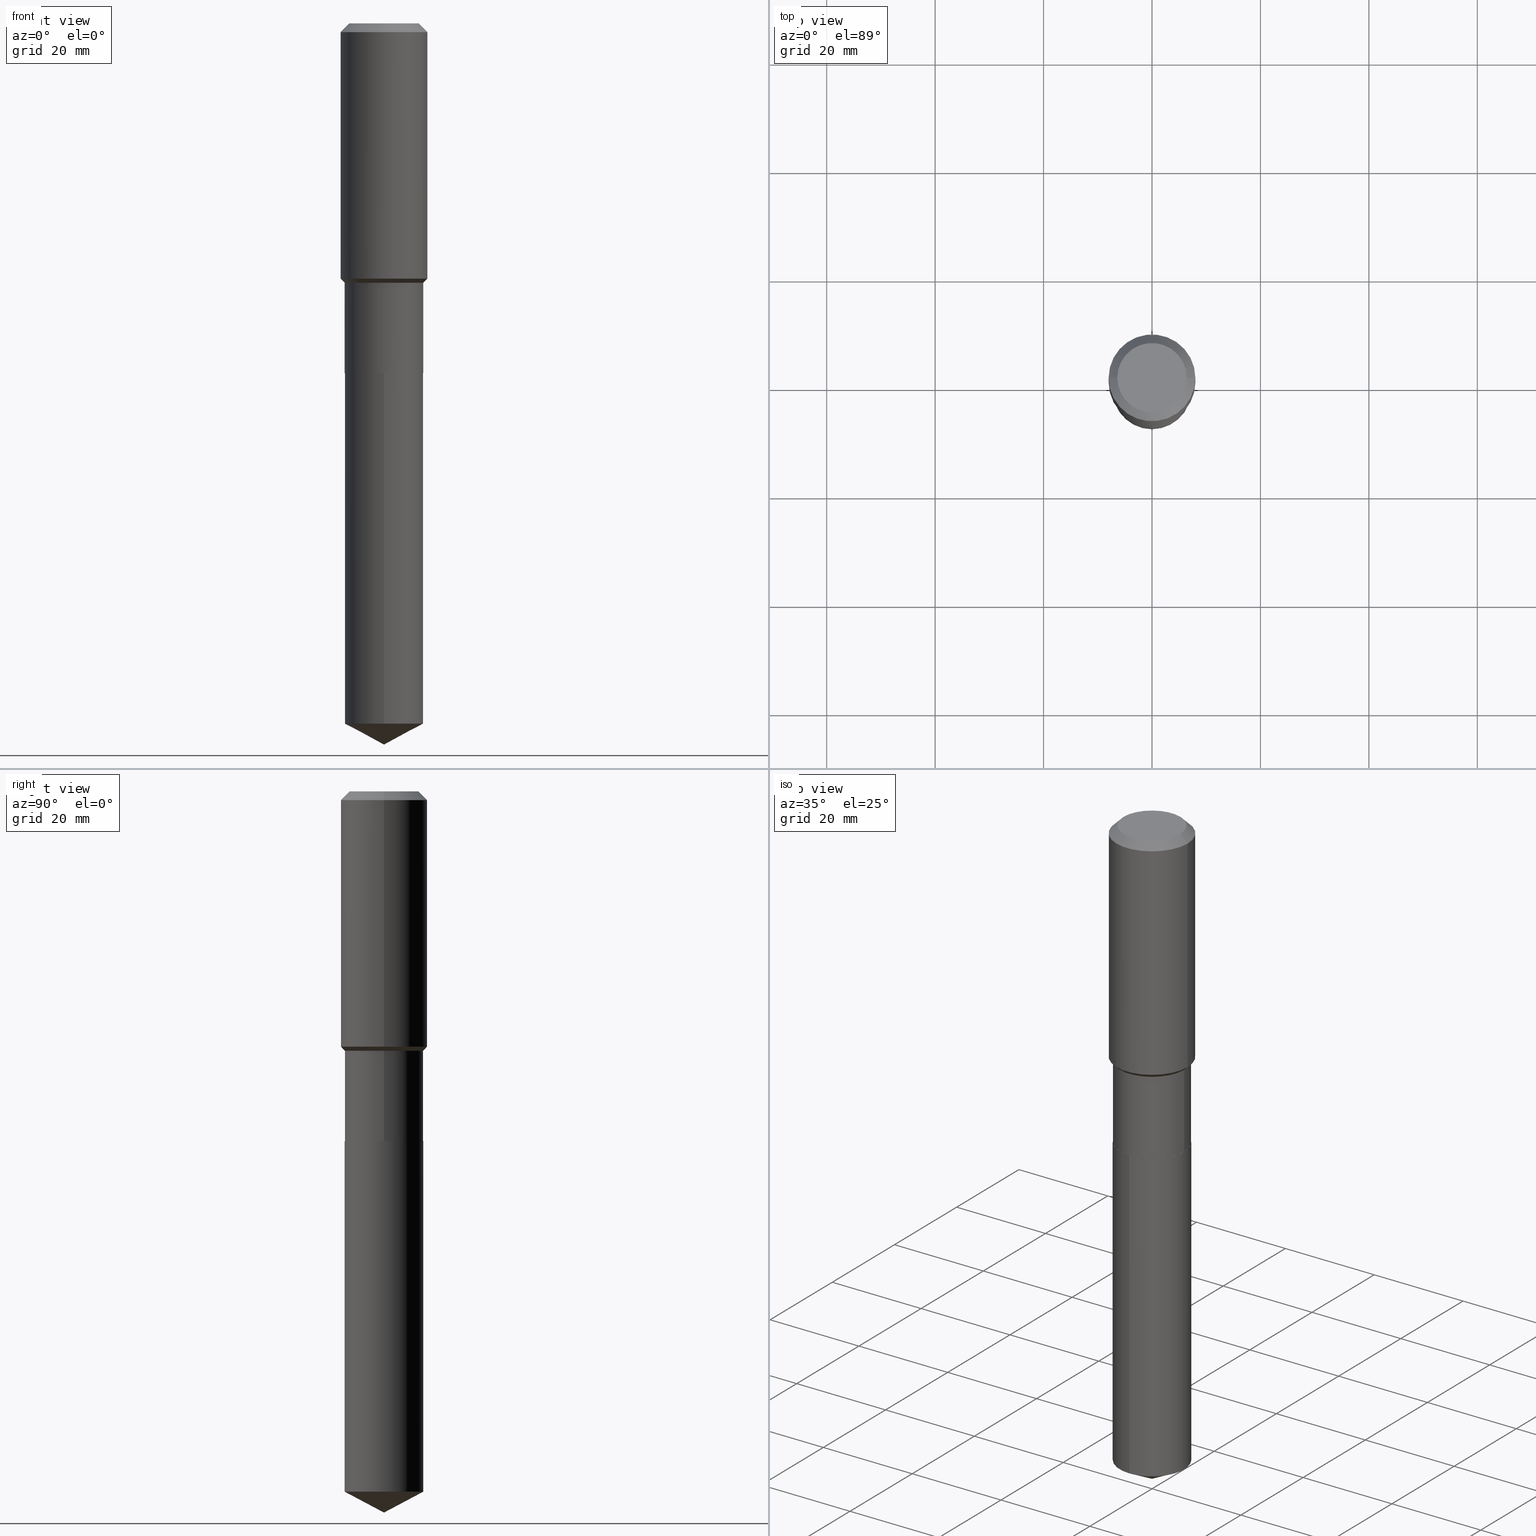
[diagram: canonical four-view strip — front | top / right | iso, engineering-drawing reading convention]
A machine part, canonical four-view strip (front | top / right | iso — engineering-drawing reading convention). The complete STEP part file that produces these views, byte-faithful:
ISO-10303-21;
HEADER;
FILE_DESCRIPTION (( 'STEP AP203' ),
    '1' );
FILE_NAME ('64897.STEP',
    '2024-04-24T19:37:30',
    ( '' ),
    ( '' ),
    'SwSTEP 2.0',
    'SolidWorks 2023',
    '' );
FILE_SCHEMA (( 'CONFIG_CONTROL_DESIGN' ));
ENDSEC;

DATA;
#1 = APPROVAL_ROLE ( '' ) ;
#2 = ADVANCED_FACE ( 'NONE', ( #76 ), #378, .T. ) ;
#3 = ORIENTED_EDGE ( 'NONE', *, *, #293, .F. ) ;
#4 = APPROVAL_DATE_TIME ( #114, #205 ) ;
#5 = VERTEX_POINT ( 'NONE', #239 ) ;
#6 = EDGE_CURVE ( 'NONE', #333, #406, #278, .T. ) ;
#7 = DIRECTION ( 'NONE',  ( 1.000000000000000000, -6.982962677686266711E-15, 0.000000000000000000 ) ) ;
#8 = DIRECTION ( 'NONE',  ( -2.445298008825431619E-29, 3.491725930383425433E-15, 1.000000000000000000 ) ) ;
#9 = AXIS2_PLACEMENT_3D ( 'NONE', #90, #392, #207 ) ;
#10 = APPROVAL_DATE_TIME ( #91, #160 ) ;
#11 = ORIENTED_EDGE ( 'NONE', *, *, #407, .T. ) ;
#12 = EDGE_CURVE ( 'NONE', #137, #254, #459, .T. ) ;
#13 = FACE_OUTER_BOUND ( 'NONE', #162, .T. ) ;
#14 = PERSON_AND_ORGANIZATION ( #451, #202 ) ;
#15 = DIRECTION ( 'NONE',  ( -2.438088387897960049E-29, 3.491481338843145188E-15, 1.000000000000000000 ) ) ;
#16 = AXIS2_PLACEMENT_3D ( 'NONE', #69, #482, #33 ) ;
#17 = PLANE ( 'NONE',  #201 ) ;
#18 = ADVANCED_FACE ( 'NONE', ( #386 ), #86, .T. ) ;
#19 = CARTESIAN_POINT ( 'NONE',  ( -8.346707199398058609E-28, 1.191867706173288023E-13, 34.13387874015747769 ) ) ;
#20 = EDGE_CURVE ( 'NONE', #446, #333, #410, .T. ) ;
#21 = DIRECTION ( 'NONE',  ( -1.000000000000000000, 6.982962677686266711E-15, 0.000000000000000000 ) ) ;
#22 = AXIS2_PLACEMENT_3D ( 'NONE', #54, #15, #426 ) ;
#23 = AXIS2_PLACEMENT_3D ( 'NONE', #269, #485, #121 ) ;
#24 = CARTESIAN_POINT ( 'NONE',  ( 6.208800752023443286E-29, -8.864521971188861865E-15, -2.538899999999999935 ) ) ;
#25 = VERTEX_POINT ( 'NONE', #267 ) ;
#26 = EDGE_CURVE ( 'NONE', #406, #384, #274, .T. ) ;
#27 = CARTESIAN_POINT ( 'NONE',  ( 1.540400801016026505E-30, -2.199284095337310628E-16, -0.06299000000000037902 ) ) ;
#28 = ORIENTED_EDGE ( 'NONE', *, *, #431, .T. ) ;
#29 = CARTESIAN_POINT ( 'NONE',  ( 6.208800752023443286E-29, -8.864521971188861865E-15, -2.538899999999999935 ) ) ;
#30 = EDGE_LOOP ( 'NONE', ( #419, #198, #297, #413 ) ) ;
#31 = CLOSED_SHELL ( 'NONE', ( #242, #261, #113, #169, #18, #2, #77, #212, #190, #83, #165, #393 ) ) ;
#32 = AXIS2_PLACEMENT_3D ( 'NONE', #24, #437, #182 ) ;
#33 = DIRECTION ( 'NONE',  ( 1.000000000000000000, -6.982962677686263555E-15, 0.000000000000000000 ) ) ;
#34 = ORIENTED_EDGE ( 'NONE', *, *, #399, .T. ) ;
#35 = CC_DESIGN_DATE_AND_TIME_ASSIGNMENT ( #210, #466, ( #105 ) ) ;
#36 = FACE_OUTER_BOUND ( 'NONE', #146, .T. ) ;
#37 = ORIENTED_EDGE ( 'NONE', *, *, #279, .T. ) ;
#38 = ORIENTED_EDGE ( 'NONE', *, *, #455, .T. ) ;
#39 = PERSON_AND_ORGANIZATION ( #451, #202 ) ;
#40 = AXIS2_PLACEMENT_3D ( 'NONE', #405, #220, #260 ) ;
#41 = ORIENTED_EDGE ( 'NONE', *, *, #293, .T. ) ;
#42 = ORIENTED_EDGE ( 'NONE', *, *, #484, .T. ) ;
#43 = CARTESIAN_POINT ( 'NONE',  ( -0.2519600000000000173, 1.869391481036695286E-15, 3.855188123703182704E-18 ) ) ;
#44 = DIRECTION ( 'NONE',  ( 1.000000000000000000, -6.982962677686265922E-15, 4.876176775795935232E-29 ) ) ;
#45 = EDGE_CURVE ( 'NONE', #446, #384, #191, .T. ) ;
#46 =( NAMED_UNIT ( * ) SI_UNIT ( $, .STERADIAN. ) SOLID_ANGLE_UNIT ( ) );
#47 = DIRECTION ( 'NONE',  ( 1.000000000000000000, -6.982962677686265922E-15, 4.876176775795935232E-29 ) ) ;
#48 = APPROVAL_PERSON_ORGANIZATION ( #39, #205, #1 ) ;
#49 = CC_DESIGN_DATE_AND_TIME_ASSIGNMENT ( #317, #353, ( #343 ) ) ;
#50 = SECURITY_CLASSIFICATION_LEVEL ( 'unclassified' ) ;
#51 = FACE_OUTER_BOUND ( 'NONE', #347, .T. ) ;
#52 = PERSON_AND_ORGANIZATION ( #451, #202 ) ;
#53 = FACE_OUTER_BOUND ( 'NONE', #401, .T. ) ;
#54 = CARTESIAN_POINT ( 'NONE',  ( 6.210023486426536087E-29, -8.866267711858284157E-15, -2.539400000000000102 ) ) ;
#55 = CONICAL_SURFACE ( 'NONE', #78, 0.2854499999999999260, 0.7853981633974477239 ) ;
#56 = SHAPE_DEFINITION_REPRESENTATION ( #467, #490 ) ;
#57 = CYLINDRICAL_SURFACE ( 'NONE', #140, 0.2854499999999999815 ) ;
#58 = FACE_OUTER_BOUND ( 'NONE', #404, .T. ) ;
#59 = LINE ( 'NONE', #336, #63 ) ;
#60 = ORIENTED_EDGE ( 'NONE', *, *, #150, .F. ) ;
#61 = AXIS2_PLACEMENT_3D ( 'NONE', #358, #166, #321 ) ;
#62 = EDGE_CURVE ( 'NONE', #5, #340, #159, .T. ) ;
#63 = VECTOR ( 'NONE', #214, 39.37007874015748143 ) ;
#64 = CARTESIAN_POINT ( 'NONE',  ( 4.532431885383532521E-29, -6.471111513411885808E-15, -1.853399999999999936 ) ) ;
#65 = ORIENTED_EDGE ( 'NONE', *, *, #399, .F. ) ;
#66 = APPLICATION_CONTEXT ( 'configuration controlled 3d designs of mechanical parts and assemblies' ) ;
#67 = FACE_OUTER_BOUND ( 'NONE', #143, .T. ) ;
#68 = ORIENTED_EDGE ( 'NONE', *, *, #348, .T. ) ;
#69 = CARTESIAN_POINT ( 'NONE',  ( 6.210023486426536087E-29, -8.866267711858284157E-15, -2.539400000000000102 ) ) ;
#70 = CONICAL_SURFACE ( 'NONE', #463, 0.3149500000000000077, 0.7853981633974452814 ) ;
#71 = CARTESIAN_POINT ( 'NONE',  ( 0.3149500000000002298, -8.670395608749178046E-15, -1.853399999999999936 ) ) ;
#72 = ORIENTED_EDGE ( 'NONE', *, *, #26, .T. ) ;
#73 = MECHANICAL_CONTEXT ( 'NONE', #178, 'mechanical' ) ;
#74 = DIRECTION ( 'NONE',  ( -2.445298008825431338E-29, 3.491725930383425433E-15, 1.000000000000000000 ) ) ;
#75 = PERSON_AND_ORGANIZATION_ROLE ( 'design_owner' ) ;
#76 = FACE_OUTER_BOUND ( 'NONE', #194, .T. ) ;
#77 = ADVANCED_FACE ( 'NONE', ( #462 ), #55, .T. ) ;
#78 = AXIS2_PLACEMENT_3D ( 'NONE', #360, #318, #465 ) ;
#79 = CARTESIAN_POINT ( 'NONE',  ( -0.3149500000000000077, 1.979355685803558833E-15, -0.06299000000000037902 ) ) ;
#80 = VECTOR ( 'NONE', #409, 39.37007874015748143 ) ;
#81 = ORIENTED_EDGE ( 'NONE', *, *, #219, .T. ) ;
#82 = CARTESIAN_POINT ( 'NONE',  ( 0.3149500000000000077, -2.419212504871020909E-15, -0.06299000000000037902 ) ) ;
#83 = ADVANCED_FACE ( 'NONE', ( #211 ), #420, .F. ) ;
#84 = ORIENTED_EDGE ( 'NONE', *, *, #20, .F. ) ;
#85 = CC_DESIGN_PERSON_AND_ORGANIZATION_ASSIGNMENT ( #170, #357, ( #105 ) ) ;
#86 = CYLINDRICAL_SURFACE ( 'NONE', #164, 0.2854499999999999815 ) ;
#87 = DIRECTION ( 'NONE',  ( -2.445298008825431338E-29, 3.491725930383425433E-15, 1.000000000000000000 ) ) ;
#88 = LOCAL_TIME ( 15, 37, 30.00000000000000000, #355 ) ;
#89 = APPROVAL_ROLE ( '' ) ;
#90 = CARTESIAN_POINT ( 'NONE',  ( 0.000000000000000000, 0.000000000000000000, 0.000000000000000000 ) ) ;
#91 = DATE_AND_TIME ( #206, #383 ) ;
#92 = CARTESIAN_POINT ( 'NONE',  ( -0.3149500000000000077, -1.107665615196371650E-15, -0.06299000000000037902 ) ) ;
#93 = CALENDAR_DATE ( 2024, 24, 4 ) ;
#94 = CYLINDRICAL_SURFACE ( 'NONE', #421, 0.2854499999999999815 ) ;
#95 = CIRCLE ( 'NONE', #374, 0.2854499999999999260 ) ;
#96 = DIRECTION ( 'NONE',  ( 6.982962677686265922E-15, 1.000000000000000000, -3.491725930383425433E-15 ) ) ;
#97 = CARTESIAN_POINT ( 'NONE',  ( 0.3149500000000000077, -2.380642253931875190E-15, -0.06299000000000037902 ) ) ;
#98 = ADVANCED_FACE ( 'NONE', ( #53 ), #108, .T. ) ;
#99 = DIRECTION ( 'NONE',  ( 6.273719981627766865E-15, 0.8829475928589298750, 0.4694715627858851992 ) ) ;
#100 = EDGE_LOOP ( 'NONE', ( #475, #345 ) ) ;
#101 = DIRECTION ( 'NONE',  ( 1.000000000000000000, -6.982962677686267499E-15, 0.000000000000000000 ) ) ;
#102 = ORIENTED_EDGE ( 'NONE', *, *, #249, .T. ) ;
#103 = CARTESIAN_POINT ( 'NONE',  ( -0.3149500000000001743, 2.237854346276436774E-15, -1.549218606675783237E-29 ) ) ;
#104 = ORIENTED_EDGE ( 'NONE', *, *, #271, .T. ) ;
#105 = PRODUCT_DEFINITION ( 'UNKNOWN', '', #364, #388 ) ;
#106 = DIRECTION ( 'NONE',  ( 1.000000000000000000, -6.982962677686266711E-15, 0.000000000000000000 ) ) ;
#107 = ORIENTED_EDGE ( 'NONE', *, *, #329, .T. ) ;
#108 = CONICAL_SURFACE ( 'NONE', #174, 74.04434902938365326, 1.082104136236487157 ) ;
#109 = VECTOR ( 'NONE', #135, 39.37007874015748854 ) ;
#110 = ORIENTED_EDGE ( 'NONE', *, *, #62, .T. ) ;
#111 = PERSON_AND_ORGANIZATION ( #451, #202 ) ;
#112 = CARTESIAN_POINT ( 'NONE',  ( 0.2854499999999999260, -8.567396909253303813E-15, -1.882900000000000240 ) ) ;
#113 = ADVANCED_FACE ( 'NONE', ( #394 ), #284, .T. ) ;
#114 = DATE_AND_TIME ( #449, #326 ) ;
#115 = CARTESIAN_POINT ( 'NONE',  ( 0.000000000000000000, 0.000000000000000000, 0.000000000000000000 ) ) ;
#116 = AXIS2_PLACEMENT_3D ( 'NONE', #130, #241, #428 ) ;
#117 = DIRECTION ( 'NONE',  ( 1.000000000000000000, -6.982962677686263555E-15, 0.000000000000000000 ) ) ;
#118 = CIRCLE ( 'NONE', #225, 0.2849499999999999811 ) ;
#119 = ORIENTED_EDGE ( 'NONE', *, *, #255, .T. ) ;
#120 = ADVANCED_FACE ( 'NONE', ( #398 ), #57, .T. ) ;
#121 = DIRECTION ( 'NONE',  ( 1.000000000000000000, -6.982962677686266711E-15, 4.876115136096691995E-29 ) ) ;
#122 = ORIENTED_EDGE ( 'NONE', *, *, #461, .F. ) ;
#123 = DIRECTION ( 'NONE',  ( -6.982962677686265922E-15, -1.000000000000000000, 3.541896320645555347E-15 ) ) ;
#124 = APPROVAL_DATE_TIME ( #395, #351 ) ;
#125 = CARTESIAN_POINT ( 'NONE',  ( -0.2854499999999999260, -4.545865973680553403E-15, -1.882900000000000240 ) ) ;
#126 = CIRCLE ( 'NONE', #32, 0.2854500000000000370 ) ;
#127 = CALENDAR_DATE ( 2024, 24, 4 ) ;
#128 = CARTESIAN_POINT ( 'NONE',  ( 6.210023486426536087E-29, -8.866267711858284157E-15, -2.539400000000000102 ) ) ;
#129 = COORDINATED_UNIVERSAL_TIME_OFFSET ( 5, 0, .BEHIND. ) ;
#130 = CARTESIAN_POINT ( 'NONE',  ( 4.604573215165994355E-29, -6.574110212907759252E-15, -1.882900000000000240 ) ) ;
#131 = ADVANCED_FACE ( 'NONE', ( #58 ), #17, .F. ) ;
#132 = PLANE ( 'NONE',  #22 ) ;
#133 = AXIS2_PLACEMENT_3D ( 'NONE', #235, #389, #350 ) ;
#134 = VECTOR ( 'NONE', #142, 39.37007874015748143 ) ;
#135 = DIRECTION ( 'NONE',  ( -6.165590087286836818E-15, -0.8829475928589266553, 0.4694715627858914164 ) ) ;
#136 = DIRECTION ( 'NONE',  ( -2.445468806185136597E-29, 3.491481338843145583E-15, 1.000000000000000000 ) ) ;
#137 = VERTEX_POINT ( 'NONE', #391 ) ;
#138 = LINE ( 'NONE', #97, #445 ) ;
#139 = ORIENTED_EDGE ( 'NONE', *, *, #418, .F. ) ;
#140 = AXIS2_PLACEMENT_3D ( 'NONE', #286, #87, #173 ) ;
#141 =( GEOMETRIC_REPRESENTATION_CONTEXT ( 3 ) GLOBAL_UNCERTAINTY_ASSIGNED_CONTEXT ( ( #458 ) ) GLOBAL_UNIT_ASSIGNED_CONTEXT ( ( #311, #303, #46 ) ) REPRESENTATION_CONTEXT ( 'NONE', 'WORKASPACE' ) );
#142 = DIRECTION ( 'NONE',  ( -2.445468806185136877E-29, 3.491481338843145188E-15, 1.000000000000000000 ) ) ;
#143 = EDGE_LOOP ( 'NONE', ( #307, #119, #104, #414 ) ) ;
#144 = CARTESIAN_POINT ( 'NONE',  ( 4.604573215165994355E-29, -6.574110212907759252E-15, -1.882900000000000240 ) ) ;
#145 = ORIENTED_EDGE ( 'NONE', *, *, #348, .F. ) ;
#146 = EDGE_LOOP ( 'NONE', ( #453, #481, #145, #189 ) ) ;
#147 = VECTOR ( 'NONE', #8, 39.37007874015748143 ) ;
#148 = CIRCLE ( 'NONE', #430, 0.2854500000000000370 ) ;
#149 = CARTESIAN_POINT ( 'NONE',  ( 6.210023486426536087E-29, -8.866267711858284157E-15, -2.539400000000000102 ) ) ;
#150 = EDGE_CURVE ( 'NONE', #304, #342, #469, .T. ) ;
#151 = CARTESIAN_POINT ( 'NONE',  ( 6.210023486426536087E-29, -8.866267711858284157E-15, -2.539400000000000102 ) ) ;
#152 = COORDINATED_UNIVERSAL_TIME_OFFSET ( 5, 0, .BEHIND. ) ;
#153 = ORIENTED_EDGE ( 'NONE', *, *, #275, .T. ) ;
#154 = CARTESIAN_POINT ( 'NONE',  ( 4.532431885383532521E-29, -6.471111513411885808E-15, -1.853399999999999936 ) ) ;
#155 = CARTESIAN_POINT ( 'NONE',  ( -1.993286696345482241E-15, -0.2854500000000088633, -2.539399999999999213 ) ) ;
#156 = PRODUCT ( '64897', '64897', '', ( #73 ) ) ;
#157 = AXIS2_PLACEMENT_3D ( 'NONE', #245, #250, #243 ) ;
#158 = DIRECTION ( 'NONE',  ( -0.7071067811865453523, 2.468850131082234184E-15, -0.7071067811865496822 ) ) ;
#159 = LINE ( 'NONE', #112, #200 ) ;
#160 = APPROVAL ( #244, 'UNSPECIFIED' ) ;
#161 = APPROVAL_ROLE ( '' ) ;
#162 = EDGE_LOOP ( 'NONE', ( #337, #417, #230, #11 ) ) ;
#163 = CARTESIAN_POINT ( 'NONE',  ( -4.713871149261284790E-47, 6.730158695841843144E-33, 1.927594061857935750E-18 ) ) ;
#164 = AXIS2_PLACEMENT_3D ( 'NONE', #115, #448, #44 ) ;
#165 = ADVANCED_FACE ( 'NONE', ( #213 ), #132, .F. ) ;
#166 = DIRECTION ( 'NONE',  ( -2.445468806185136597E-29, 3.491481338843145583E-15, 1.000000000000000000 ) ) ;
#167 = AXIS2_PLACEMENT_3D ( 'NONE', #433, #176, #256 ) ;
#168 = DIRECTION ( 'NONE',  ( 2.438088387897960049E-29, -3.491481338843145188E-15, -1.000000000000000000 ) ) ;
#169 = ADVANCED_FACE ( 'NONE', ( #468 ), #305, .T. ) ;
#170 = PERSON_AND_ORGANIZATION ( #451, #202 ) ;
#171 = CARTESIAN_POINT ( 'NONE',  ( 6.210023486426536087E-29, -8.866267711858284157E-15, -2.539400000000000102 ) ) ;
#172 = ADVANCED_FACE ( 'NONE', ( #51 ), #94, .T. ) ;
#173 = DIRECTION ( 'NONE',  ( -6.982962677686265922E-15, -1.000000000000000000, 3.828128209723963046E-15 ) ) ;
#174 = AXIS2_PLACEMENT_3D ( 'NONE', #19, #362, #123 ) ;
#175 = CIRCLE ( 'NONE', #265, 0.2849499999999999811 ) ;
#176 = DIRECTION ( 'NONE',  ( -2.445298008825431338E-29, 3.491725930383425433E-15, 1.000000000000000000 ) ) ;
#177 = VERTEX_POINT ( 'NONE', #92 ) ;
#178 = APPLICATION_CONTEXT ( 'configuration controlled 3d designs of mechanical parts and assemblies' ) ;
#179 = CARTESIAN_POINT ( 'NONE',  ( -1.993286696345420316E-15, -0.2854500000000176896, -5.084423542732230850 ) ) ;
#180 = EDGE_CURVE ( 'NONE', #384, #406, #486, .T. ) ;
#181 = ORIENTED_EDGE ( 'NONE', *, *, #461, .T. ) ;
#182 = DIRECTION ( 'NONE',  ( 1.000000000000000000, -6.982962677686267499E-15, 0.000000000000000000 ) ) ;
#183 = CC_DESIGN_PERSON_AND_ORGANIZATION_ASSIGNMENT ( #288, #423, ( #343 ) ) ;
#184 = ORIENTED_EDGE ( 'NONE', *, *, #431, .F. ) ;
#185 = LOCAL_TIME ( 15, 37, 30.00000000000000000, #285 ) ;
#186 = CARTESIAN_POINT ( 'NONE',  ( -0.2854499999999999260, -5.691071852821104709E-15, -1.882900000000000240 ) ) ;
#187 = VERTEX_POINT ( 'NONE', #356 ) ;
#188 = FACE_OUTER_BOUND ( 'NONE', #440, .T. ) ;
#189 = ORIENTED_EDGE ( 'NONE', *, *, #271, .F. ) ;
#190 = ADVANCED_FACE ( 'NONE', ( #13 ), #429, .T. ) ;
#191 = LINE ( 'NONE', #489, #147 ) ;
#192 = APPROVAL_PERSON_ORGANIZATION ( #361, #160, #89 ) ;
#193 = APPROVAL_STATUS ( 'not_yet_approved' ) ;
#194 = EDGE_LOOP ( 'NONE', ( #366, #153, #28, #3 ) ) ;
#195 = DIRECTION ( 'NONE',  ( 1.000000000000000000, 0.000000000000000000, 0.000000000000000000 ) ) ;
#196 = EDGE_LOOP ( 'NONE', ( #270, #107, #312, #65 ) ) ;
#197 = LINE ( 'NONE', #380, #298 ) ;
#198 = ORIENTED_EDGE ( 'NONE', *, *, #20, .T. ) ;
#199 = CC_DESIGN_PERSON_AND_ORGANIZATION_ASSIGNMENT ( #14, #464, ( #364 ) ) ;
#200 = VECTOR ( 'NONE', #283, 39.37007874015748143 ) ;
#201 = AXIS2_PLACEMENT_3D ( 'NONE', #128, #323, #96 ) ;
#202 = ORGANIZATION ( 'UNSPECIFIED', 'UNSPECIFIED', '' ) ;
#203 = DIRECTION ( 'NONE',  ( -6.982962677686265922E-15, -1.000000000000000000, 3.828128209723963046E-15 ) ) ;
#204 = DIRECTION ( 'NONE',  ( -2.445298008825431338E-29, 3.491725930383425433E-15, 1.000000000000000000 ) ) ;
#205 = APPROVAL ( #193, 'UNSPECIFIED' ) ;
#206 = CALENDAR_DATE ( 2024, 24, 4 ) ;
#207 = DIRECTION ( 'NONE',  ( 1.000000000000000000, -6.982962677686265922E-15, 4.876176775795935232E-29 ) ) ;
#208 = DIRECTION ( 'NONE',  ( 2.445468806185136597E-29, -3.491481338843145583E-15, -1.000000000000000000 ) ) ;
#209 = AXIS2_PLACEMENT_3D ( 'NONE', #266, #412, #195 ) ;
#210 = DATE_AND_TIME ( #93, #88 ) ;
#211 = FACE_OUTER_BOUND ( 'NONE', #259, .T. ) ;
#212 = ADVANCED_FACE ( 'NONE', ( #247 ), #424, .T. ) ;
#213 = FACE_OUTER_BOUND ( 'NONE', #100, .T. ) ;
#214 = DIRECTION ( 'NONE',  ( -2.445468806185136877E-29, 3.491481338843145188E-15, 1.000000000000000000 ) ) ;
#215 = ORIENTED_EDGE ( 'NONE', *, *, #45, .T. ) ;
#216 = CIRCLE ( 'NONE', #320, 0.2854499999999999260 ) ;
#217 = DIRECTION ( 'NONE',  ( -2.445468806185136597E-29, 3.491481338843145583E-15, 1.000000000000000000 ) ) ;
#218 = ORIENTED_EDGE ( 'NONE', *, *, #397, .F. ) ;
#219 = EDGE_CURVE ( 'NONE', #415, #478, #224, .T. ) ;
#220 = DIRECTION ( 'NONE',  ( -2.445298008825431338E-29, 3.491725930383425433E-15, 1.000000000000000000 ) ) ;
#221 = ORIENTED_EDGE ( 'NONE', *, *, #407, .F. ) ;
#222 = DIRECTION ( 'NONE',  ( 1.000000000000000000, -6.982962677686267499E-15, 0.000000000000000000 ) ) ;
#223 = ORIENTED_EDGE ( 'NONE', *, *, #180, .T. ) ;
#224 = CIRCLE ( 'NONE', #61, 0.2519600000000000173 ) ;
#225 = AXIS2_PLACEMENT_3D ( 'NONE', #149, #236, #117 ) ;
#226 = CARTESIAN_POINT ( 'NONE',  ( 1.540400801016026505E-30, -2.199284095337310628E-16, -0.06299000000000037902 ) ) ;
#227 = DIRECTION ( 'NONE',  ( -2.445468806185136877E-29, 3.491481338843145188E-15, 1.000000000000000000 ) ) ;
#228 = ORIENTED_EDGE ( 'NONE', *, *, #279, .F. ) ;
#229 = LENGTH_MEASURE_WITH_UNIT ( LENGTH_MEASURE( 0.02539999999999999897 ), #339 );
#230 = ORIENTED_EDGE ( 'NONE', *, *, #418, .T. ) ;
#231 = AXIS2_PLACEMENT_3D ( 'NONE', #381, #273, #47 ) ;
#232 = CIRCLE ( 'NONE', #40, 0.2854499999999999815 ) ;
#233 = EDGE_CURVE ( 'NONE', #442, #333, #299, .T. ) ;
#234 = CC_DESIGN_APPROVAL ( #160, ( #343 ) ) ;
#235 = CARTESIAN_POINT ( 'NONE',  ( 1.243336448788351019E-28, -1.775279240945271103E-14, -5.084423542732232626 ) ) ;
#236 = DIRECTION ( 'NONE',  ( -2.445468806185136597E-29, 3.491481338843145583E-15, 1.000000000000000000 ) ) ;
#237 = DIRECTION ( 'NONE',  ( -0.7071067811864509833, 7.493145998870005484E-15, 0.7071067811866440511 ) ) ;
#238 = DIRECTION ( 'NONE',  ( 1.000000000000000000, -6.982962677686267499E-15, 0.000000000000000000 ) ) ;
#239 = CARTESIAN_POINT ( 'NONE',  ( 0.2854499999999999260, -8.567396909253303813E-15, -1.882900000000000240 ) ) ;
#240 = AXIS2_PLACEMENT_3D ( 'NONE', #154, #457, #447 ) ;
#241 = DIRECTION ( 'NONE',  ( -2.445468806185136597E-29, 3.491481338843145583E-15, 1.000000000000000000 ) ) ;
#242 = ADVANCED_FACE ( 'NONE', ( #36 ), #264, .T. ) ;
#243 = DIRECTION ( 'NONE',  ( -6.982962677686265922E-15, -1.000000000000000000, 3.828128209723963046E-15 ) ) ;
#244 = APPROVAL_STATUS ( 'not_yet_approved' ) ;
#245 = CARTESIAN_POINT ( 'NONE',  ( 6.210023486426536087E-29, -8.866267711858284157E-15, -2.539400000000000102 ) ) ;
#246 = APPROVAL_STATUS ( 'not_yet_approved' ) ;
#247 = FACE_OUTER_BOUND ( 'NONE', #368, .T. ) ;
#248 = AXIS2_PLACEMENT_3D ( 'NONE', #474, #434, #252 ) ;
#249 = EDGE_CURVE ( 'NONE', #478, #438, #138, .T. ) ;
#250 = DIRECTION ( 'NONE',  ( -2.445298008825431338E-29, 3.491725930383425433E-15, 1.000000000000000000 ) ) ;
#251 = DIRECTION ( 'NONE',  ( -1.000000000000000000, 6.982962677686266711E-15, 0.000000000000000000 ) ) ;
#252 = DIRECTION ( 'NONE',  ( 1.000000000000000000, -6.982962677686263555E-15, 0.000000000000000000 ) ) ;
#253 = VECTOR ( 'NONE', #277, 39.37007874015748143 ) ;
#254 = VERTEX_POINT ( 'NONE', #291 ) ;
#255 = EDGE_CURVE ( 'NONE', #137, #187, #175, .T. ) ;
#256 = DIRECTION ( 'NONE',  ( -6.982962677686265922E-15, -1.000000000000000000, 3.541896320645555347E-15 ) ) ;
#257 = ORIENTED_EDGE ( 'NONE', *, *, #287, .T. ) ;
#258 = CARTESIAN_POINT ( 'NONE',  ( -0.3149500000000002298, -4.233257167135448246E-15, -1.853399999999999936 ) ) ;
#259 = EDGE_LOOP ( 'NONE', ( #81, #181 ) ) ;
#260 = DIRECTION ( 'NONE',  ( -6.982962677686265922E-15, -1.000000000000000000, 3.828128209723963046E-15 ) ) ;
#261 = ADVANCED_FACE ( 'NONE', ( #408 ), #70, .T. ) ;
#262 = EDGE_LOOP ( 'NONE', ( #60, #41, #110, #373 ) ) ;
#263 = AXIS2_PLACEMENT_3D ( 'NONE', #363, #208, #21 ) ;
#264 = CONICAL_SURFACE ( 'NONE', #16, 0.2849499999999999811, 0.7853981633973118326 ) ;
#265 = AXIS2_PLACEMENT_3D ( 'NONE', #439, #136, #371 ) ;
#266 = CARTESIAN_POINT ( 'NONE',  ( 0.000000000000000000, 0.000000000000000000, 0.000000000000000000 ) ) ;
#267 = CARTESIAN_POINT ( 'NONE',  ( 0.2854500000000000370, -1.085780866753440800E-14, -2.538899999999999935 ) ) ;
#268 = DIMENSIONAL_EXPONENTS ( 1.000000000000000000, 0.000000000000000000, 0.000000000000000000, 0.000000000000000000, 0.000000000000000000, 0.000000000000000000, 0.000000000000000000 ) ;
#269 = CARTESIAN_POINT ( 'NONE',  ( -9.427742298522569579E-47, 1.346031739168368629E-32, 3.855188123715871501E-18 ) ) ;
#270 = ORIENTED_EDGE ( 'NONE', *, *, #397, .T. ) ;
#271 = EDGE_CURVE ( 'NONE', #187, #25, #400, .T. ) ;
#272 = DIRECTION ( 'NONE',  ( -2.445468806185136597E-29, 3.491481338843145583E-15, 1.000000000000000000 ) ) ;
#273 = DIRECTION ( 'NONE',  ( -2.445468806185136597E-29, 3.491481338843145583E-15, 1.000000000000000000 ) ) ;
#274 = CIRCLE ( 'NONE', #319, 0.2854499999999999815 ) ;
#275 = EDGE_CURVE ( 'NONE', #254, #25, #148, .T. ) ;
#276 = CIRCLE ( 'NONE', #390, 0.3149500000000000077 ) ;
#277 = DIRECTION ( 'NONE',  ( -2.445298008825431619E-29, 3.491725930383425433E-15, 1.000000000000000000 ) ) ;
#278 = LINE ( 'NONE', #155, #253 ) ;
#279 = EDGE_CURVE ( 'NONE', #442, #446, #332, .T. ) ;
#280 = CARTESIAN_POINT ( 'NONE',  ( 0.000000000000000000, 0.000000000000000000, 0.000000000000000000 ) ) ;
#281 = CC_DESIGN_APPROVAL ( #351, ( #364 ) ) ;
#282 = PERSON_AND_ORGANIZATION ( #451, #202 ) ;
#283 = DIRECTION ( 'NONE',  ( 0.7071067811865471286, -2.468850131082252722E-15, 0.7071067811865479058 ) ) ;
#284 = CYLINDRICAL_SURFACE ( 'NONE', #443, 0.3149500000000001743 ) ;
#285 = COORDINATED_UNIVERSAL_TIME_OFFSET ( 5, 0, .BEHIND. ) ;
#286 = CARTESIAN_POINT ( 'NONE',  ( 6.210023486426536087E-29, -8.866267711858284157E-15, -2.539400000000000102 ) ) ;
#287 = EDGE_CURVE ( 'NONE', #254, #304, #59, .T. ) ;
#288 = PERSON_AND_ORGANIZATION ( #451, #202 ) ;
#289 = VECTOR ( 'NONE', #237, 39.37007874015748143 ) ;
#290 = DIRECTION ( 'NONE',  ( -2.445468806185136597E-29, 3.491481338843145583E-15, 1.000000000000000000 ) ) ;
#291 = CARTESIAN_POINT ( 'NONE',  ( -0.2854500000000000370, -5.691071852821104709E-15, -2.538899999999999935 ) ) ;
#292 = DIRECTION ( 'NONE',  ( 0.7071067811865453523, -7.319954787623248157E-15, -0.7071067811865496822 ) ) ;
#293 = EDGE_CURVE ( 'NONE', #304, #5, #216, .T. ) ;
#294 = ORIENTED_EDGE ( 'NONE', *, *, #329, .F. ) ;
#295 = LINE ( 'NONE', #103, #80 ) ;
#296 = AXIS2_PLACEMENT_3D ( 'NONE', #163, #168, #327 ) ;
#297 = ORIENTED_EDGE ( 'NONE', *, *, #6, .T. ) ;
#298 = VECTOR ( 'NONE', #227, 39.37007874015748143 ) ;
#299 = LINE ( 'NONE', #476, #109 ) ;
#300 = ORIENTED_EDGE ( 'NONE', *, *, #484, .F. ) ;
#301 = CARTESIAN_POINT ( 'NONE',  ( 1.280494448591643651E-28, -1.828213308515891974E-14, -5.236200000000000188 ) ) ;
#302 = ORIENTED_EDGE ( 'NONE', *, *, #322, .T. ) ;
#303 =( NAMED_UNIT ( * ) PLANE_ANGLE_UNIT ( ) SI_UNIT ( $, .RADIAN. ) );
#304 = VERTEX_POINT ( 'NONE', #186 ) ;
#305 = CONICAL_SURFACE ( 'NONE', #116, 0.2854499999999999260, 0.7853981633974477239 ) ;
#306 = CC_DESIGN_APPROVAL ( #205, ( #105 ) ) ;
#307 = ORIENTED_EDGE ( 'NONE', *, *, #12, .F. ) ;
#308 = MANIFOLD_SOLID_BREP ( 'Body-Move/Copy2[1]', #382 ) ;
#309 = ORIENTED_EDGE ( 'NONE', *, *, #26, .F. ) ;
#310 = EDGE_CURVE ( 'NONE', #438, #177, #276, .T. ) ;
#311 =( CONVERSION_BASED_UNIT ( 'INCH', #229 ) LENGTH_UNIT ( ) NAMED_UNIT ( #268 ) );
#312 = ORIENTED_EDGE ( 'NONE', *, *, #310, .F. ) ;
#313 = CONICAL_SURFACE ( 'NONE', #248, 0.2849499999999999811, 0.7853981633973118326 ) ;
#314 = CARTESIAN_POINT ( 'NONE',  ( 2.028244239227329306E-15, 0.2854499999999822180, -5.084423542732233514 ) ) ;
#315 = ORIENTED_EDGE ( 'NONE', *, *, #150, .T. ) ;
#316 = ORIENTED_EDGE ( 'NONE', *, *, #6, .F. ) ;
#317 = DATE_AND_TIME ( #127, #402 ) ;
#318 = DIRECTION ( 'NONE',  ( -2.445468806185136597E-29, 3.491481338843145583E-15, 1.000000000000000000 ) ) ;
#319 = AXIS2_PLACEMENT_3D ( 'NONE', #151, #74, #203 ) ;
#320 = AXIS2_PLACEMENT_3D ( 'NONE', #144, #441, #101 ) ;
#321 = DIRECTION ( 'NONE',  ( 1.000000000000000000, -6.982962677686266711E-15, 4.876115136096691995E-29 ) ) ;
#322 = EDGE_CURVE ( 'NONE', #333, #446, #232, .T. ) ;
#323 = DIRECTION ( 'NONE',  ( 2.445298008825431058E-29, -3.491725930383425433E-15, -1.000000000000000000 ) ) ;
#324 = PERSON_AND_ORGANIZATION_ROLE ( 'design_supplier' ) ;
#325 = DIRECTION ( 'NONE',  ( 1.000000000000000000, -6.982962677686265922E-15, 4.876176775795935232E-29 ) ) ;
#326 = LOCAL_TIME ( 15, 37, 30.00000000000000000, #152 ) ;
#327 = DIRECTION ( 'NONE',  ( -1.000000000000000000, 6.982962677686265922E-15, -4.876176775795935793E-29 ) ) ;
#328 = CC_DESIGN_SECURITY_CLASSIFICATION ( #343, ( #364 ) ) ;
#329 = EDGE_CURVE ( 'NONE', #342, #177, #295, .T. ) ;
#330 = DIRECTION ( 'NONE',  ( 2.445468806185136597E-29, -3.491481338843145583E-15, -1.000000000000000000 ) ) ;
#331 = EDGE_LOOP ( 'NONE', ( #122, #102, #483, #139 ) ) ;
#332 = LINE ( 'NONE', #301, #422 ) ;
#333 = VERTEX_POINT ( 'NONE', #179 ) ;
#334 = LINE ( 'NONE', #480, #134 ) ;
#335 = CIRCLE ( 'NONE', #23, 0.2519600000000000173 ) ;
#336 = CARTESIAN_POINT ( 'NONE',  ( -0.2854499999999999815, 2.028244239227205849E-15, -1.404110021513262784E-29 ) ) ;
#337 = ORIENTED_EDGE ( 'NONE', *, *, #249, .F. ) ;
#338 = CC_DESIGN_PERSON_AND_ORGANIZATION_ASSIGNMENT ( #52, #324, ( #364 ) ) ;
#339 =( LENGTH_UNIT ( ) NAMED_UNIT ( * ) SI_UNIT ( $, .METRE. ) );
#340 = VERTEX_POINT ( 'NONE', #71 ) ;
#341 = CARTESIAN_POINT ( 'NONE',  ( -1.993286696345482241E-15, -0.2854500000000088633, -2.539399999999999213 ) ) ;
#342 = VERTEX_POINT ( 'NONE', #258 ) ;
#343 = SECURITY_CLASSIFICATION ( '', '', #50 ) ;
#344 = CC_DESIGN_PERSON_AND_ORGANIZATION_ASSIGNMENT ( #111, #75, ( #156 ) ) ;
#345 = ORIENTED_EDGE ( 'NONE', *, *, #255, .F. ) ;
#346 = APPLICATION_PROTOCOL_DEFINITION ( 'international standard', 'config_control_design', 1994, #178 ) ;
#347 = EDGE_LOOP ( 'NONE', ( #302, #215, #309, #316 ) ) ;
#348 = EDGE_CURVE ( 'NONE', #25, #254, #126, .T. ) ;
#349 = CARTESIAN_POINT ( 'NONE',  ( 1.540400801016026505E-30, -2.199284095337310628E-16, -0.06299000000000037902 ) ) ;
#350 = DIRECTION ( 'NONE',  ( -6.982962677686265922E-15, -1.000000000000000000, 3.828128209723963046E-15 ) ) ;
#351 = APPROVAL ( #246, 'UNSPECIFIED' ) ;
#352 = AXIS2_PLACEMENT_3D ( 'NONE', #64, #217, #369 ) ;
#353 = DATE_TIME_ROLE ( 'classification_date' ) ;
#354 = ORIENTED_EDGE ( 'NONE', *, *, #233, .F. ) ;
#355 = COORDINATED_UNIVERSAL_TIME_OFFSET ( 5, 0, .BEHIND. ) ;
#356 = CARTESIAN_POINT ( 'NONE',  ( 0.2849499999999999811, -1.085606292686498571E-14, -2.539400000000000102 ) ) ;
#357 = PERSON_AND_ORGANIZATION_ROLE ( 'creator' ) ;
#358 = CARTESIAN_POINT ( 'NONE',  ( -9.427742298522569579E-47, 1.346031739168368629E-32, 3.855188123715871501E-18 ) ) ;
#359 = CIRCLE ( 'NONE', #240, 0.3149500000000002298 ) ;
#360 = CARTESIAN_POINT ( 'NONE',  ( 4.604573215165994355E-29, -6.574110212907759252E-15, -1.882900000000000240 ) ) ;
#361 = PERSON_AND_ORGANIZATION ( #451, #202 ) ;
#362 = DIRECTION ( 'NONE',  ( -2.445298008825431338E-29, 3.491725930383425433E-15, 1.000000000000000000 ) ) ;
#363 = CARTESIAN_POINT ( 'NONE',  ( 1.540400801016026505E-30, -2.199284095337310628E-16, -0.06299000000000037902 ) ) ;
#364 = PRODUCT_DEFINITION_FORMATION_WITH_SPECIFIED_SOURCE ( 'ANY', '', #156, .NOT_KNOWN. ) ;
#365 = DIRECTION ( 'NONE',  ( -2.445468806185136597E-29, 3.491481338843145583E-15, 1.000000000000000000 ) ) ;
#366 = ORIENTED_EDGE ( 'NONE', *, *, #287, .F. ) ;
#367 = DIRECTION ( 'NONE',  ( -2.445468806185136597E-29, 3.491481338843145583E-15, 1.000000000000000000 ) ) ;
#368 = EDGE_LOOP ( 'NONE', ( #294, #38, #34, #221 ) ) ;
#369 = DIRECTION ( 'NONE',  ( 1.000000000000000000, -6.982962677686268288E-15, 0.000000000000000000 ) ) ;
#370 = ORIENTED_EDGE ( 'NONE', *, *, #233, .T. ) ;
#371 = DIRECTION ( 'NONE',  ( 1.000000000000000000, -6.982962677686263555E-15, 0.000000000000000000 ) ) ;
#372 = PRODUCT_RELATED_PRODUCT_CATEGORY ( 'detail', '', ( #156 ) ) ;
#373 = ORIENTED_EDGE ( 'NONE', *, *, #455, .F. ) ;
#374 = AXIS2_PLACEMENT_3D ( 'NONE', #444, #272, #238 ) ;
#375 = DIRECTION ( 'NONE',  ( 0.7071067811864509833, -2.468850131081245741E-15, 0.7071067811866440511 ) ) ;
#376 = ORIENTED_EDGE ( 'NONE', *, *, #322, .F. ) ;
#377 = CARTESIAN_POINT ( 'NONE',  ( 1.280406943381172318E-28, -1.828337531667369242E-14, -5.236200000000000188 ) ) ;
#378 = CYLINDRICAL_SURFACE ( 'NONE', #231, 0.2854499999999999815 ) ;
#379 = ADVANCED_FACE ( 'NONE', ( #188 ), #479, .T. ) ;
#380 = CARTESIAN_POINT ( 'NONE',  ( 0.2854499999999999815, -1.993286696345544561E-15, 1.391904660650949682E-29 ) ) ;
#381 = CARTESIAN_POINT ( 'NONE',  ( 0.000000000000000000, 0.000000000000000000, 0.000000000000000000 ) ) ;
#382 = CLOSED_SHELL ( 'NONE', ( #172, #379, #98, #120, #131 ) ) ;
#383 = LOCAL_TIME ( 15, 37, 30.00000000000000000, #427 ) ;
#384 = VERTEX_POINT ( 'NONE', #403 ) ;
#385 = DIRECTION ( 'NONE',  ( -2.445468806185136597E-29, 3.491481338843145583E-15, 1.000000000000000000 ) ) ;
#386 = FACE_OUTER_BOUND ( 'NONE', #411, .T. ) ;
#387 = CARTESIAN_POINT ( 'NONE',  ( 0.2519600000000000173, -2.054606664725195058E-15, 3.855188123729206640E-18 ) ) ;
#388 = DESIGN_CONTEXT ( 'detailed design', #66, 'design' ) ;
#389 = DIRECTION ( 'NONE',  ( -2.445298008825431338E-29, 3.491725930383425433E-15, 1.000000000000000000 ) ) ;
#390 = AXIS2_PLACEMENT_3D ( 'NONE', #226, #365, #106 ) ;
#391 = CARTESIAN_POINT ( 'NONE',  ( -0.2849499999999999811, -6.838926959135767216E-15, -2.539400000000000102 ) ) ;
#392 = DIRECTION ( 'NONE',  ( -2.445468806185136597E-29, 3.491481338843145583E-15, 1.000000000000000000 ) ) ;
#393 = ADVANCED_FACE ( 'NONE', ( #67 ), #313, .T. ) ;
#394 = FACE_OUTER_BOUND ( 'NONE', #196, .T. ) ;
#395 = DATE_AND_TIME ( #425, #185 ) ;
#396 = DIRECTION ( 'NONE',  ( -0.7071067811865471286, 7.493145998870352582E-15, 0.7071067811865479058 ) ) ;
#397 = EDGE_CURVE ( 'NONE', #340, #342, #436, .T. ) ;
#398 = FACE_OUTER_BOUND ( 'NONE', #30, .T. ) ;
#399 = EDGE_CURVE ( 'NONE', #340, #438, #334, .T. ) ;
#400 = LINE ( 'NONE', #473, #472 ) ;
#401 = EDGE_LOOP ( 'NONE', ( #228, #370, #84 ) ) ;
#402 = LOCAL_TIME ( 15, 37, 30.00000000000000000, #129 ) ;
#403 = CARTESIAN_POINT ( 'NONE',  ( 2.028244239227330489E-15, 0.2854499999999910997, -2.539400000000001434 ) ) ;
#404 = EDGE_LOOP ( 'NONE', ( #72, #223 ) ) ;
#405 = CARTESIAN_POINT ( 'NONE',  ( 1.243336448788351019E-28, -1.775279240945271103E-14, -5.084423542732232626 ) ) ;
#406 = VERTEX_POINT ( 'NONE', #341 ) ;
#407 = EDGE_CURVE ( 'NONE', #177, #438, #454, .T. ) ;
#408 = FACE_OUTER_BOUND ( 'NONE', #331, .T. ) ;
#409 = DIRECTION ( 'NONE',  ( -2.445468806185136877E-29, 3.491481338843145188E-15, 1.000000000000000000 ) ) ;
#410 = CIRCLE ( 'NONE', #133, 0.2854499999999999815 ) ;
#411 = EDGE_LOOP ( 'NONE', ( #68, #257, #300, #184 ) ) ;
#412 = DIRECTION ( 'NONE',  ( 0.000000000000000000, 0.000000000000000000, 1.000000000000000000 ) ) ;
#413 = ORIENTED_EDGE ( 'NONE', *, *, #180, .F. ) ;
#414 = ORIENTED_EDGE ( 'NONE', *, *, #275, .F. ) ;
#415 = VERTEX_POINT ( 'NONE', #43 ) ;
#416 = APPROVAL_PERSON_ORGANIZATION ( #282, #351, #161 ) ;
#417 = ORIENTED_EDGE ( 'NONE', *, *, #219, .F. ) ;
#418 = EDGE_CURVE ( 'NONE', #415, #177, #487, .T. ) ;
#419 = ORIENTED_EDGE ( 'NONE', *, *, #45, .F. ) ;
#420 = PLANE ( 'NONE',  #296 ) ;
#421 = AXIS2_PLACEMENT_3D ( 'NONE', #171, #204, #432 ) ;
#422 = VECTOR ( 'NONE', #99, 39.37007874015748143 ) ;
#423 = PERSON_AND_ORGANIZATION_ROLE ( 'classification_officer' ) ;
#424 = CYLINDRICAL_SURFACE ( 'NONE', #9, 0.3149500000000001743 ) ;
#425 = CALENDAR_DATE ( 2024, 24, 4 ) ;
#426 = DIRECTION ( 'NONE',  ( 1.000000000000000000, -6.982962677686265922E-15, 4.876176775795935793E-29 ) ) ;
#427 = COORDINATED_UNIVERSAL_TIME_OFFSET ( 5, 0, .BEHIND. ) ;
#428 = DIRECTION ( 'NONE',  ( 1.000000000000000000, -6.982962677686267499E-15, 0.000000000000000000 ) ) ;
#429 = CONICAL_SURFACE ( 'NONE', #263, 0.3149500000000000077, 0.7853981633974452814 ) ;
#430 = AXIS2_PLACEMENT_3D ( 'NONE', #29, #367, #222 ) ;
#431 = EDGE_CURVE ( 'NONE', #25, #5, #197, .T. ) ;
#432 = DIRECTION ( 'NONE',  ( -6.982962677686265922E-15, -1.000000000000000000, 3.828128209723963046E-15 ) ) ;
#433 = CARTESIAN_POINT ( 'NONE',  ( -8.346707199398058609E-28, 1.191867706173288023E-13, 34.13387874015747769 ) ) ;
#434 = DIRECTION ( 'NONE',  ( -2.445468806185136597E-29, 3.491481338843145583E-15, 1.000000000000000000 ) ) ;
#435 = EDGE_LOOP ( 'NONE', ( #42, #315, #218, #450 ) ) ;
#436 = CIRCLE ( 'NONE', #352, 0.3149500000000002298 ) ;
#437 = DIRECTION ( 'NONE',  ( -2.445468806185136597E-29, 3.491481338843145583E-15, 1.000000000000000000 ) ) ;
#438 = VERTEX_POINT ( 'NONE', #82 ) ;
#439 = CARTESIAN_POINT ( 'NONE',  ( 6.210023486426536087E-29, -8.866267711858284157E-15, -2.539400000000000102 ) ) ;
#440 = EDGE_LOOP ( 'NONE', ( #354, #37, #376 ) ) ;
#441 = DIRECTION ( 'NONE',  ( -2.445468806185136597E-29, 3.491481338843145583E-15, 1.000000000000000000 ) ) ;
#442 = VERTEX_POINT ( 'NONE', #377 ) ;
#443 = AXIS2_PLACEMENT_3D ( 'NONE', #280, #290, #325 ) ;
#444 = CARTESIAN_POINT ( 'NONE',  ( 4.604573215165994355E-29, -6.574110212907759252E-15, -1.882900000000000240 ) ) ;
#445 = VECTOR ( 'NONE', #292, 39.37007874015748143 ) ;
#446 = VERTEX_POINT ( 'NONE', #314 ) ;
#447 = DIRECTION ( 'NONE',  ( 1.000000000000000000, -6.982962677686268288E-15, 0.000000000000000000 ) ) ;
#448 = DIRECTION ( 'NONE',  ( -2.445468806185136597E-29, 3.491481338843145583E-15, 1.000000000000000000 ) ) ;
#449 = CALENDAR_DATE ( 2024, 24, 4 ) ;
#450 = ORIENTED_EDGE ( 'NONE', *, *, #62, .F. ) ;
#451 = PERSON ( 'UNSPECIFIED', 'UNSPECIFIED', 'UNSPECIFIED', ('UNSPECIFIED'), ('UNSPECIFIED'), ('UNSPECIFIED') ) ;
#452 = APPLICATION_PROTOCOL_DEFINITION ( 'international standard', 'config_control_design', 1994, #66 ) ;
#453 = ORIENTED_EDGE ( 'NONE', *, *, #477, .T. ) ;
#454 = CIRCLE ( 'NONE', #471, 0.3149500000000000077 ) ;
#455 = EDGE_CURVE ( 'NONE', #342, #340, #359, .T. ) ;
#456 = MANIFOLD_SOLID_BREP ( 'Body-Move/Copy2[2]', #31 ) ;
#457 = DIRECTION ( 'NONE',  ( -2.445468806185136597E-29, 3.491481338843145583E-15, 1.000000000000000000 ) ) ;
#458 = UNCERTAINTY_MEASURE_WITH_UNIT (LENGTH_MEASURE( 1.000000000000000082E-05 ), #311, 'distance_accuracy_value', 'NONE');
#459 = LINE ( 'NONE', #460, #289 ) ;
#460 = CARTESIAN_POINT ( 'NONE',  ( -0.2849499999999999811, -6.841576186309879206E-15, -2.539400000000000102 ) ) ;
#461 = EDGE_CURVE ( 'NONE', #478, #415, #335, .T. ) ;
#462 = FACE_OUTER_BOUND ( 'NONE', #262, .T. ) ;
#463 = AXIS2_PLACEMENT_3D ( 'NONE', #27, #330, #251 ) ;
#464 = PERSON_AND_ORGANIZATION_ROLE ( 'creator' ) ;
#465 = DIRECTION ( 'NONE',  ( 1.000000000000000000, -6.982962677686267499E-15, 0.000000000000000000 ) ) ;
#466 = DATE_TIME_ROLE ( 'creation_date' ) ;
#467 = PRODUCT_DEFINITION_SHAPE ( 'NONE', 'NONE',  #105 ) ;
#468 = FACE_OUTER_BOUND ( 'NONE', #435, .T. ) ;
#469 = LINE ( 'NONE', #125, #470 ) ;
#470 = VECTOR ( 'NONE', #396, 39.37007874015748143 ) ;
#471 = AXIS2_PLACEMENT_3D ( 'NONE', #349, #385, #7 ) ;
#472 = VECTOR ( 'NONE', #375, 39.37007874015748143 ) ;
#473 = CARTESIAN_POINT ( 'NONE',  ( 0.2849499999999999811, -1.085606292686498571E-14, -2.539400000000000102 ) ) ;
#474 = CARTESIAN_POINT ( 'NONE',  ( 6.210023486426536087E-29, -8.866267711858284157E-15, -2.539400000000000102 ) ) ;
#475 = ORIENTED_EDGE ( 'NONE', *, *, #477, .F. ) ;
#476 = CARTESIAN_POINT ( 'NONE',  ( 1.280406943381172318E-28, -1.828337531667369242E-14, -5.236200000000000188 ) ) ;
#477 = EDGE_CURVE ( 'NONE', #187, #137, #118, .T. ) ;
#478 = VERTEX_POINT ( 'NONE', #387 ) ;
#479 = CONICAL_SURFACE ( 'NONE', #167, 74.04434902938365326, 1.082104136236487157 ) ;
#480 = CARTESIAN_POINT ( 'NONE',  ( 0.3149500000000001743, -2.199284095337290660E-15, 1.535751875536930690E-29 ) ) ;
#481 = ORIENTED_EDGE ( 'NONE', *, *, #12, .T. ) ;
#482 = DIRECTION ( 'NONE',  ( -2.445468806185136597E-29, 3.491481338843145583E-15, 1.000000000000000000 ) ) ;
#483 = ORIENTED_EDGE ( 'NONE', *, *, #310, .T. ) ;
#484 = EDGE_CURVE ( 'NONE', #5, #304, #95, .T. ) ;
#485 = DIRECTION ( 'NONE',  ( -2.445468806185136597E-29, 3.491481338843145583E-15, 1.000000000000000000 ) ) ;
#486 = CIRCLE ( 'NONE', #157, 0.2854499999999999815 ) ;
#487 = LINE ( 'NONE', #79, #488 ) ;
#488 = VECTOR ( 'NONE', #158, 39.37007874015748143 ) ;
#489 = CARTESIAN_POINT ( 'NONE',  ( 2.028244239227267775E-15, 0.2854499999999910997, -2.539400000000001434 ) ) ;
#490 = ADVANCED_BREP_SHAPE_REPRESENTATION ( '64897', ( #308, #456, #209 ), #141 ) ;
ENDSEC;
END-ISO-10303-21;
